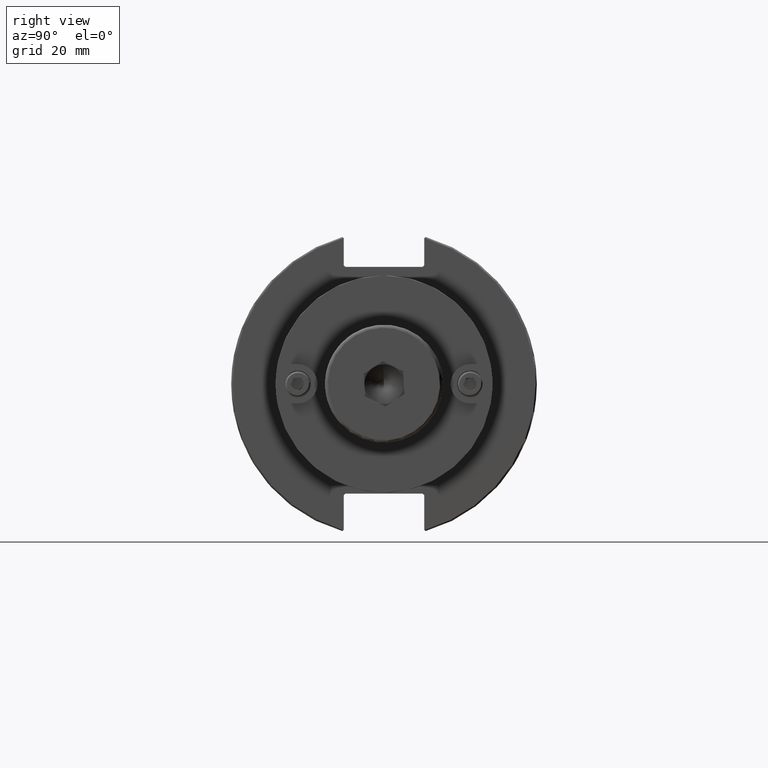
[diagram: clean part render]
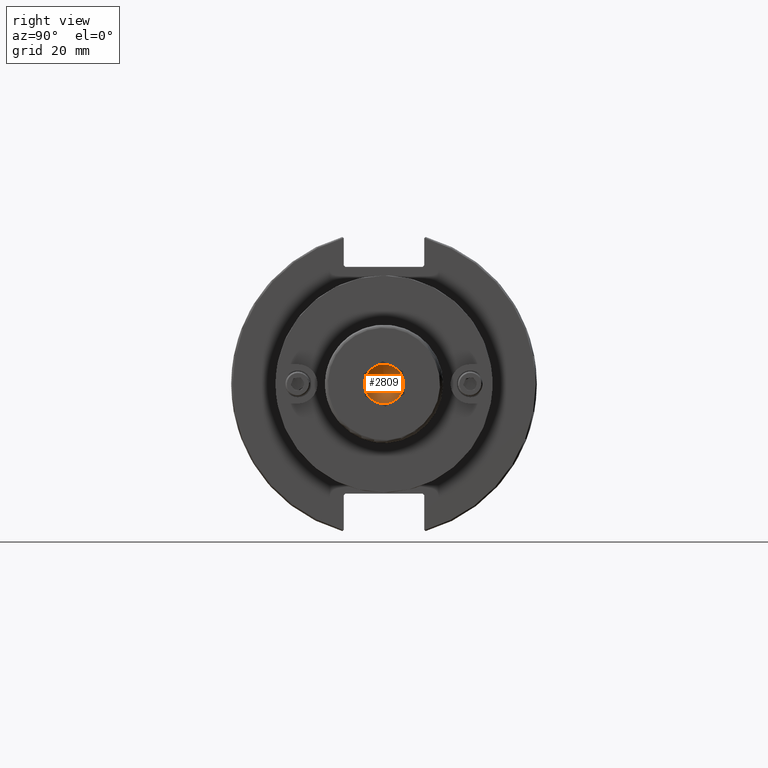
[diagram: same view with one face highlighted and labeled with its STEP entity id]
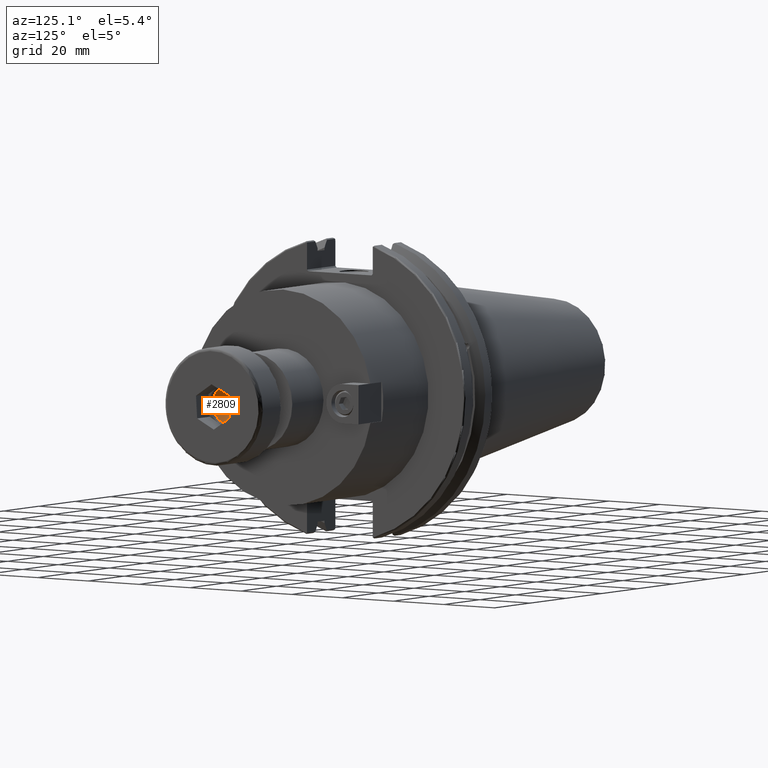
[diagram: same view with one face highlighted and labeled with its STEP entity id]
A machine part, right view. The second image highlights one B-rep face of the part: STEP entity #2809.
A second angle (auxiliary view) of the same face is appended — the face is thin or edge-on in the first view.
In plain terms, the highlighted conical surface has half-angle 59 deg.
Its self-contained STEP definition (entity closure, byte-faithful):
#569=CONICAL_SURFACE('',#3207,3.175,1.02974425867665);
#692=CIRCLE('',#3208,6.35);
#827=FACE_OUTER_BOUND('',#988,.T.);
#988=EDGE_LOOP('',(#2443,#2444,#2445));
#1150=LINE('',#5307,#1316);
#1316=VECTOR('',#3847,3.175);
#1539=VERTEX_POINT('',#5304);
#1540=VERTEX_POINT('',#5306);
#1851=EDGE_CURVE('',#1539,#1539,#692,.T.);
#1852=EDGE_CURVE('',#1539,#1540,#1150,.T.);
#2443=ORIENTED_EDGE('',*,*,#1851,.T.);
#2444=ORIENTED_EDGE('',*,*,#1852,.T.);
#2445=ORIENTED_EDGE('',*,*,#1852,.F.);
#2809=ADVANCED_FACE('',(#827),#569,.F.);
#3207=AXIS2_PLACEMENT_3D('',#5303,#3843,#3844);
#3208=AXIS2_PLACEMENT_3D('',#5305,#3845,#3846);
#3843=DIRECTION('center_axis',(-1.,0.,0.));
#3844=DIRECTION('ref_axis',(0.,0.,1.));
#3845=DIRECTION('center_axis',(-1.,0.,0.));
#3846=DIRECTION('ref_axis',(0.,0.,1.));
#3847=DIRECTION('',(0.515038074910054,1.04972719113862E-16,0.857167300702112));
#5303=CARTESIAN_POINT('Origin',(10.9077324654125,0.,0.));
#5304=CARTESIAN_POINT('',(9.,-7.77650717458569E-16,-6.35));
#5305=CARTESIAN_POINT('Origin',(9.,0.,0.));
#5306=CARTESIAN_POINT('',(12.815464930825,0.,0.));
#5307=CARTESIAN_POINT('',(10.9077324654125,-3.88825358729285E-16,-3.175));